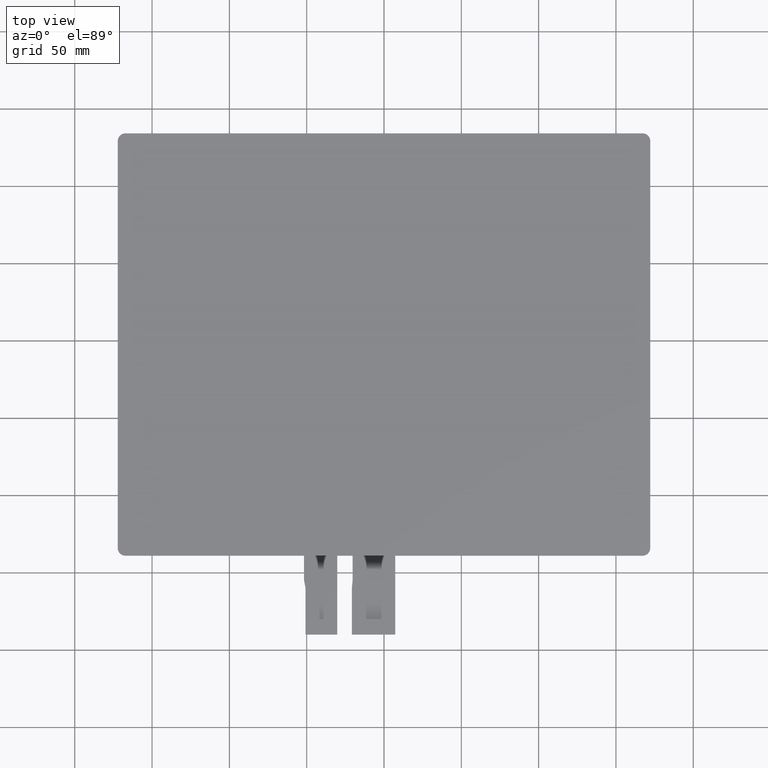
[diagram: clean part render]
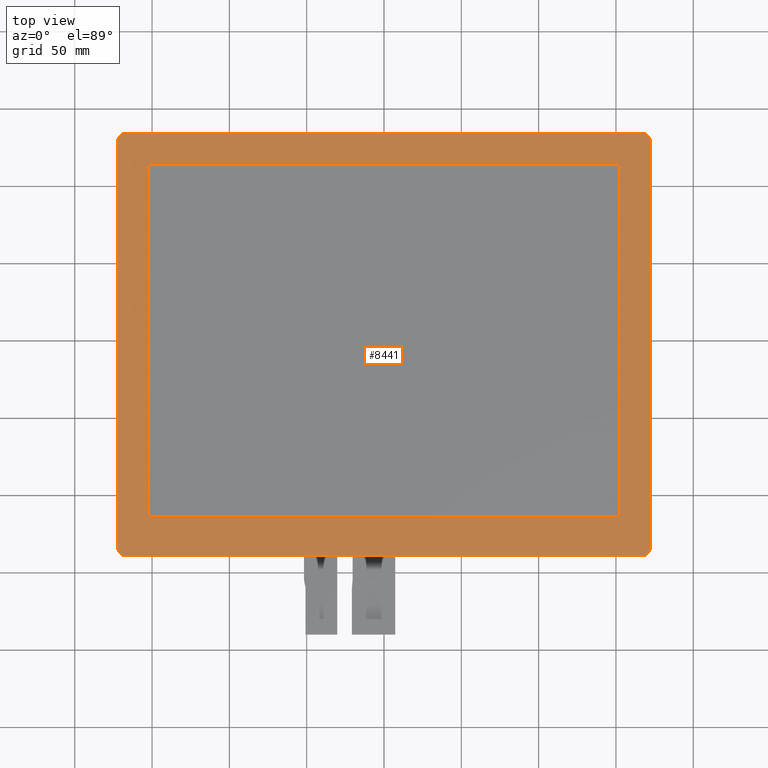
[diagram: same view with one face highlighted and labeled with its STEP entity id]
A machine part, top view. The second image highlights one B-rep face of the part: STEP entity #8441.
In plain terms, the highlighted planar face has unit normal (0, 0, 1).
Its self-contained STEP definition (entity closure, byte-faithful):
#30=FACE_BOUND('',#500,.T.);
#50=CIRCLE('',#8887,5.);
#52=CIRCLE('',#8891,5.);
#53=CIRCLE('',#8892,5.);
#54=CIRCLE('',#8893,5.);
#74=FACE_OUTER_BOUND('',#499,.T.);
#499=EDGE_LOOP('',(#5535,#5536,#5537,#5538,#5539,#5540,#5541,#5542));
#500=EDGE_LOOP('',(#5543,#5544,#5545,#5546));
#934=LINE('',#11470,#2179);
#937=LINE('',#11476,#2182);
#938=LINE('',#11480,#2183);
#939=LINE('',#11484,#2184);
#940=LINE('',#11488,#2185);
#941=LINE('',#11490,#2186);
#942=LINE('',#11492,#2187);
#943=LINE('',#11493,#2188);
#2179=VECTOR('',#9351,10.);
#2182=VECTOR('',#9356,10.);
#2183=VECTOR('',#9359,10.);
#2184=VECTOR('',#9362,10.);
#2185=VECTOR('',#9365,10.);
#2186=VECTOR('',#9366,10.);
#2187=VECTOR('',#9367,10.);
#2188=VECTOR('',#9368,10.);
#3418=VERTEX_POINT('',#11460);
#3419=VERTEX_POINT('',#11461);
#3422=VERTEX_POINT('',#11469);
#3424=VERTEX_POINT('',#11475);
#3425=VERTEX_POINT('',#11477);
#3426=VERTEX_POINT('',#11479);
#3427=VERTEX_POINT('',#11481);
#3428=VERTEX_POINT('',#11483);
#3429=VERTEX_POINT('',#11486);
#3430=VERTEX_POINT('',#11487);
#3431=VERTEX_POINT('',#11489);
#3432=VERTEX_POINT('',#11491);
#4260=EDGE_CURVE('',#3418,#3419,#50,.T.);
#4264=EDGE_CURVE('',#3422,#3419,#934,.T.);
#4267=EDGE_CURVE('',#3418,#3424,#937,.T.);
#4268=EDGE_CURVE('',#3425,#3424,#52,.T.);
#4269=EDGE_CURVE('',#3425,#3426,#938,.T.);
#4270=EDGE_CURVE('',#3427,#3426,#53,.T.);
#4271=EDGE_CURVE('',#3427,#3428,#939,.T.);
#4272=EDGE_CURVE('',#3422,#3428,#54,.T.);
#4273=EDGE_CURVE('',#3429,#3430,#940,.T.);
#4274=EDGE_CURVE('',#3431,#3429,#941,.T.);
#4275=EDGE_CURVE('',#3432,#3431,#942,.T.);
#4276=EDGE_CURVE('',#3430,#3432,#943,.T.);
#5535=ORIENTED_EDGE('',*,*,#4260,.F.);
#5536=ORIENTED_EDGE('',*,*,#4267,.T.);
#5537=ORIENTED_EDGE('',*,*,#4268,.F.);
#5538=ORIENTED_EDGE('',*,*,#4269,.T.);
#5539=ORIENTED_EDGE('',*,*,#4270,.F.);
#5540=ORIENTED_EDGE('',*,*,#4271,.T.);
#5541=ORIENTED_EDGE('',*,*,#4272,.F.);
#5542=ORIENTED_EDGE('',*,*,#4264,.T.);
#5543=ORIENTED_EDGE('',*,*,#4273,.F.);
#5544=ORIENTED_EDGE('',*,*,#4274,.F.);
#5545=ORIENTED_EDGE('',*,*,#4275,.F.);
#5546=ORIENTED_EDGE('',*,*,#4276,.F.);
#8020=PLANE('',#8890);
#8441=ADVANCED_FACE('',(#74,#30),#8020,.T.);
#8887=AXIS2_PLACEMENT_3D('',#11462,#9343,#9344);
#8890=AXIS2_PLACEMENT_3D('',#11474,#9354,#9355);
#8891=AXIS2_PLACEMENT_3D('',#11478,#9357,#9358);
#8892=AXIS2_PLACEMENT_3D('',#11482,#9360,#9361);
#8893=AXIS2_PLACEMENT_3D('',#11485,#9363,#9364);
#9343=DIRECTION('center_axis',(0.,0.,-1.));
#9344=DIRECTION('ref_axis',(0.707106781186547,0.707106781186547,0.));
#9351=DIRECTION('',(0.,1.,0.));
#9354=DIRECTION('center_axis',(0.,0.,1.));
#9355=DIRECTION('ref_axis',(1.,0.,0.));
#9356=DIRECTION('',(-1.,0.,0.));
#9357=DIRECTION('center_axis',(0.,0.,-1.));
#9358=DIRECTION('ref_axis',(-0.707106781186547,0.707106781186547,0.));
#9359=DIRECTION('',(2.60081528462701E-16,-1.,0.));
#9360=DIRECTION('center_axis',(0.,0.,-1.));
#9361=DIRECTION('ref_axis',(-0.707106781186547,-0.707106781186547,0.));
#9362=DIRECTION('',(1.,1.03156610882709E-16,0.));
#9363=DIRECTION('center_axis',(0.,0.,-1.));
#9364=DIRECTION('ref_axis',(0.707106781186547,-0.707106781186547,0.));
#9365=DIRECTION('',(0.,1.,0.));
#9366=DIRECTION('',(1.,0.,0.));
#9367=DIRECTION('',(0.,-1.,0.));
#9368=DIRECTION('',(-1.,0.,0.));
#11460=CARTESIAN_POINT('',(167.2,134.15,1.8));
#11461=CARTESIAN_POINT('',(172.2,129.15,1.8));
#11462=CARTESIAN_POINT('Origin',(167.2,129.15,1.8));
#11469=CARTESIAN_POINT('',(172.2,-134.05,1.8));
#11470=CARTESIAN_POINT('',(172.2,-139.05,1.8));
#11474=CARTESIAN_POINT('Origin',(-3.5527136788005E-14,-2.44999999999999,
1.8));
#11475=CARTESIAN_POINT('',(-167.2,134.15,1.8));
#11476=CARTESIAN_POINT('',(172.2,134.15,1.8));
#11477=CARTESIAN_POINT('',(-172.2,129.15,1.8));
#11478=CARTESIAN_POINT('Origin',(-167.2,129.15,1.8));
#11479=CARTESIAN_POINT('',(-172.2,-134.05,1.8));
#11480=CARTESIAN_POINT('',(-172.2,134.15,1.8));
#11481=CARTESIAN_POINT('',(-167.2,-139.05,1.8));
#11482=CARTESIAN_POINT('Origin',(-167.2,-134.05,1.8));
#11483=CARTESIAN_POINT('',(167.2,-139.05,1.8));
#11484=CARTESIAN_POINT('',(-172.2,-139.05,1.8));
#11485=CARTESIAN_POINT('Origin',(167.2,-134.05,1.8));
#11486=CARTESIAN_POINT('',(152.1,-114.05,1.8));
#11487=CARTESIAN_POINT('',(152.1,114.05,1.8));
#11488=CARTESIAN_POINT('',(152.1,-58.25,1.8));
#11489=CARTESIAN_POINT('',(-152.1,-114.05,1.8));
#11490=CARTESIAN_POINT('',(-76.05,-114.05,1.8));
#11491=CARTESIAN_POINT('',(-152.1,114.05,1.8));
#11492=CARTESIAN_POINT('',(-152.1,55.8,1.8));
#11493=CARTESIAN_POINT('',(76.05,114.05,1.8));